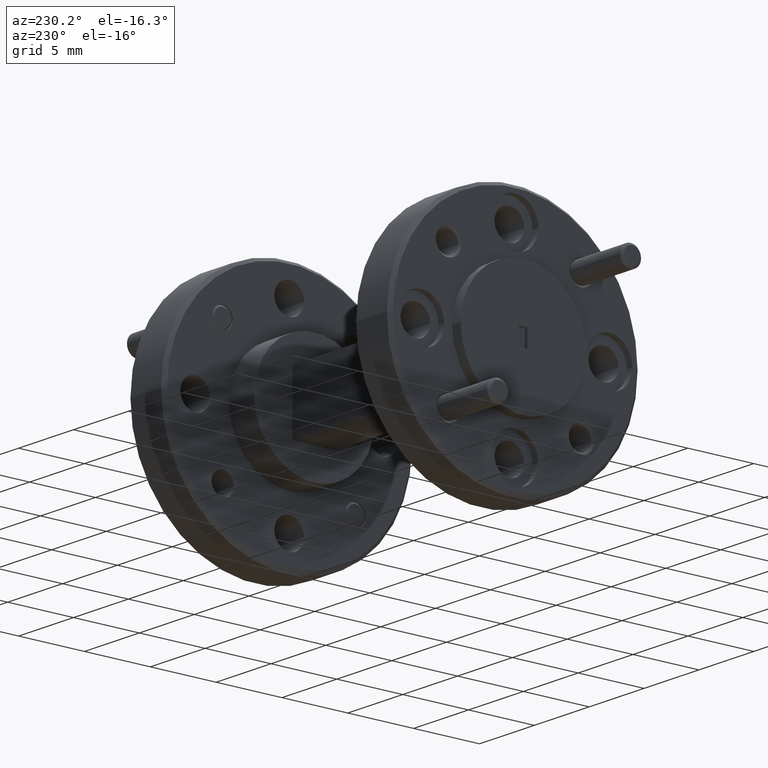
[diagram: clean part render]
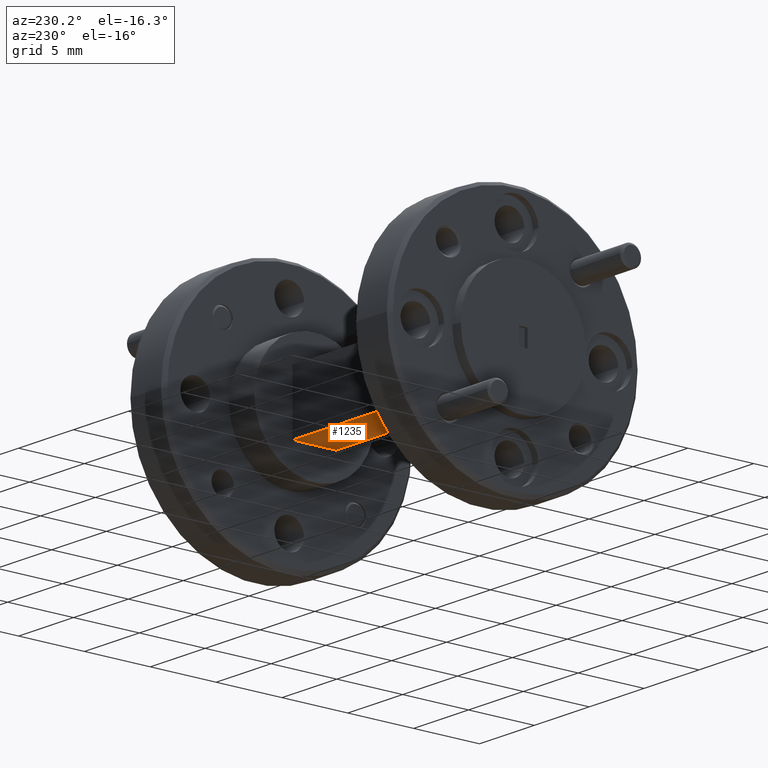
[diagram: same view with one face highlighted and labeled with its STEP entity id]
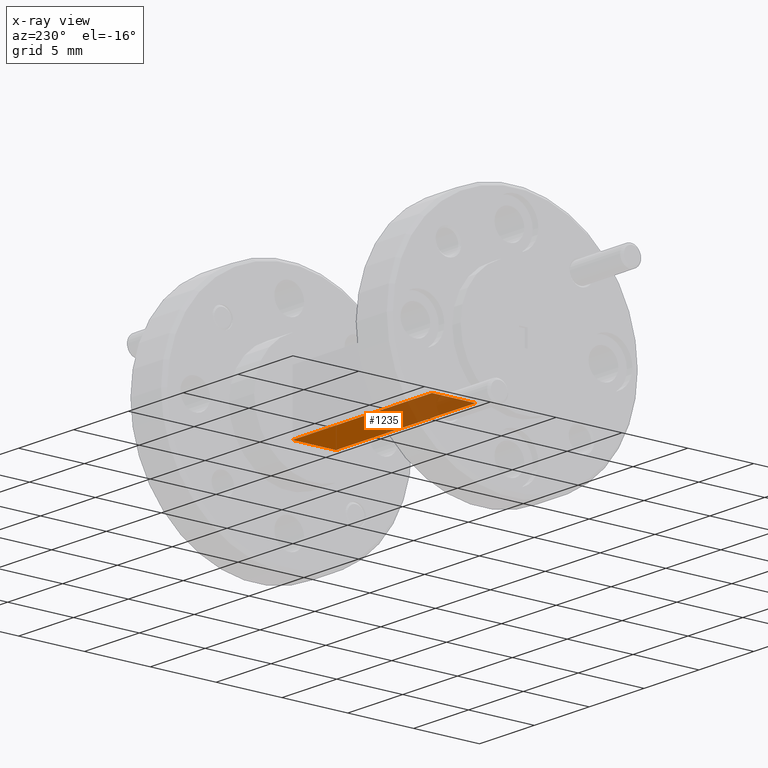
[diagram: x-ray of the same camera — body ghosted, the highlighted face saturated]
A machine part, auxiliary view. The second image highlights one B-rep face of the part: STEP entity #1235.
The next image is the same camera in x-ray: the body ghosted, the highlighted face saturated — about 51% of this face is hidden behind the body in this view.
In plain terms, the highlighted planar face has unit normal (-0, 0, 1).
Its self-contained STEP definition (entity closure, byte-faithful):
#222 = EDGE_CURVE ( 'NONE', #3476, #267, #1711, .T. ) ;
#254 = EDGE_CURVE ( 'NONE', #2495, #267, #3243, .T. ) ;
#267 = VERTEX_POINT ( 'NONE', #2164 ) ;
#448 = ORIENTED_EDGE ( 'NONE', *, *, #254, .F. ) ;
#637 = VECTOR ( 'NONE', #757, 39.37007874015748100 ) ;
#696 = PLANE ( 'NONE',  #1763 ) ;
#757 = DIRECTION ( 'NONE',  ( 1.000000000000000000, 2.390366994456230600E-016, 0.0000000000000000000 ) ) ;
#1109 = EDGE_CURVE ( 'NONE', #2495, #2822, #1836, .T. ) ;
#1235 = ADVANCED_FACE ( 'NONE', ( #3214 ), #696, .F. ) ;
#1379 = ORIENTED_EDGE ( 'NONE', *, *, #222, .T. ) ;
#1410 = DIRECTION ( 'NONE',  ( -0.0000000000000000000, 0.0000000000000000000, 1.000000000000000000 ) ) ;
#1435 = CARTESIAN_POINT ( 'NONE',  ( 0.2500000000000000600, -0.3749999999999996700, -0.08999999999999999700 ) ) ;
#1538 = CARTESIAN_POINT ( 'NONE',  ( 0.7499999999999998900, -0.3749999999999996700, -0.08999999999999999700 ) ) ;
#1619 = CARTESIAN_POINT ( 'NONE',  ( 0.2500000000000000600, -0.3749999999999996700, -0.08999999999999999700 ) ) ;
#1711 = LINE ( 'NONE', #2789, #637 ) ;
#1763 = AXIS2_PLACEMENT_3D ( 'NONE', #1435, #1410, #4063 ) ;
#1835 = CARTESIAN_POINT ( 'NONE',  ( 0.7500000000000001100, -0.06499999999999983600, -0.08999999999999999700 ) ) ;
#1836 = LINE ( 'NONE', #3664, #3474 ) ;
#2164 = CARTESIAN_POINT ( 'NONE',  ( 0.7500000000000001100, 0.06500000000000018300, -0.08999999999999999700 ) ) ;
#2495 = VERTEX_POINT ( 'NONE', #1835 ) ;
#2503 = ORIENTED_EDGE ( 'NONE', *, *, #3642, .T. ) ;
#2535 = CARTESIAN_POINT ( 'NONE',  ( 0.2500000000000000600, 0.06500000000000005800, -0.08999999999999999700 ) ) ;
#2666 = DIRECTION ( 'NONE',  ( -1.000000000000000000, -1.878145495644181100E-016, 0.0000000000000000000 ) ) ;
#2767 = VECTOR ( 'NONE', #3170, 39.37007874015748100 ) ;
#2786 = CARTESIAN_POINT ( 'NONE',  ( 0.2500000000000000600, -0.06499999999999993300, -0.08999999999999999700 ) ) ;
#2789 = CARTESIAN_POINT ( 'NONE',  ( 0.2499999999999999200, 0.06500000000000005800, -0.08999999999999999700 ) ) ;
#2822 = VERTEX_POINT ( 'NONE', #2786 ) ;
#2938 = ORIENTED_EDGE ( 'NONE', *, *, #1109, .T. ) ;
#2987 = LINE ( 'NONE', #1619, #3976 ) ;
#3170 = DIRECTION ( 'NONE',  ( -0.0000000000000000000, 1.000000000000000000, -0.0000000000000000000 ) ) ;
#3214 = FACE_OUTER_BOUND ( 'NONE', #3478, .T. ) ;
#3243 = LINE ( 'NONE', #1538, #2767 ) ;
#3474 = VECTOR ( 'NONE', #2666, 39.37007874015748100 ) ;
#3476 = VERTEX_POINT ( 'NONE', #2535 ) ;
#3478 = EDGE_LOOP ( 'NONE', ( #448, #2938, #2503, #1379 ) ) ;
#3642 = EDGE_CURVE ( 'NONE', #2822, #3476, #2987, .T. ) ;
#3664 = CARTESIAN_POINT ( 'NONE',  ( 0.2499999999999999700, -0.06499999999999991900, -0.08999999999999999700 ) ) ;
#3901 = DIRECTION ( 'NONE',  ( -0.0000000000000000000, 1.000000000000000000, -0.0000000000000000000 ) ) ;
#3976 = VECTOR ( 'NONE', #3901, 39.37007874015748100 ) ;
#4063 = DIRECTION ( 'NONE',  ( 1.000000000000000000, 0.0000000000000000000, 0.0000000000000000000 ) ) ;